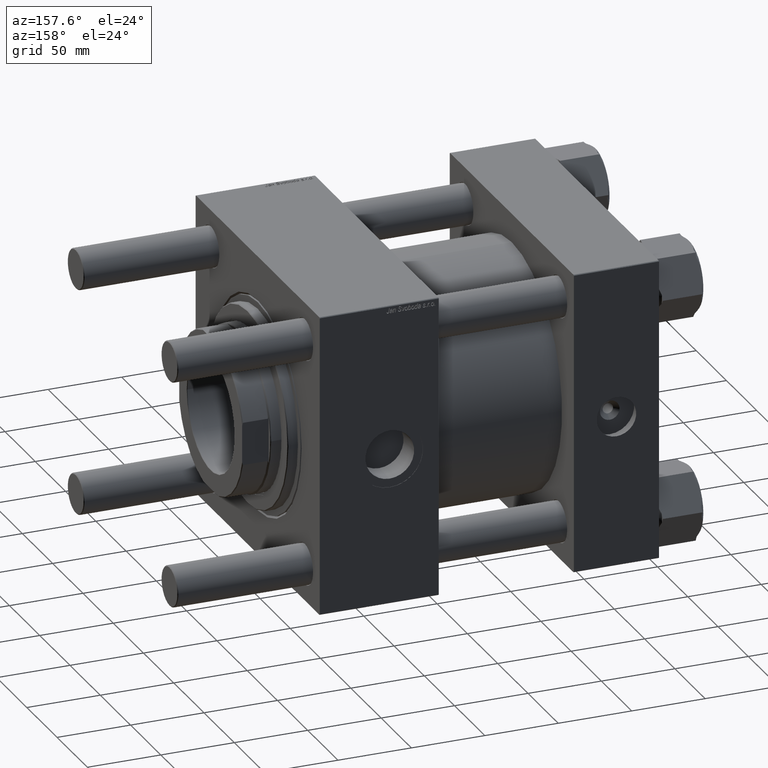
[diagram: clean part render]
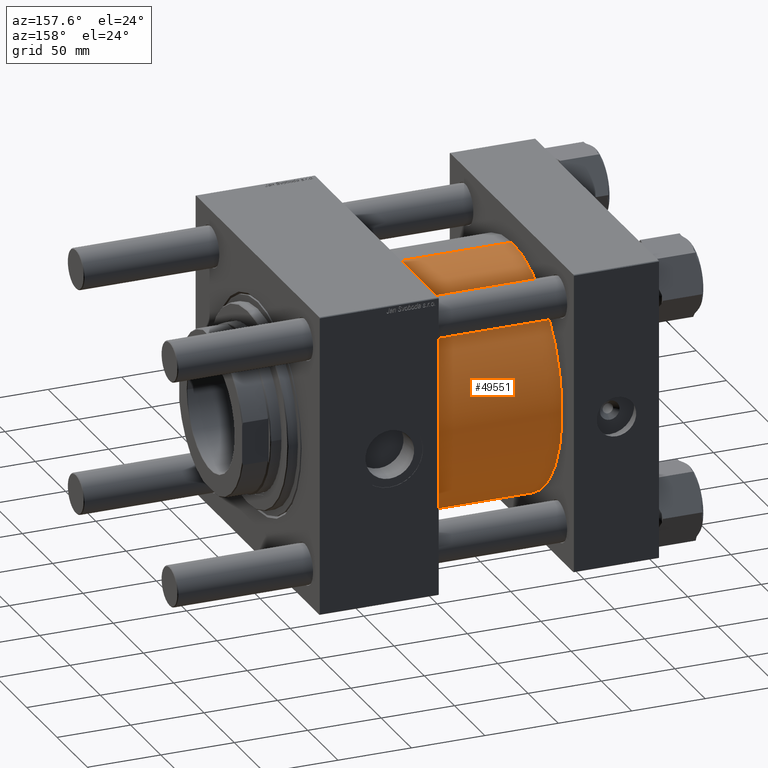
[diagram: same view with one face highlighted and labeled with its STEP entity id]
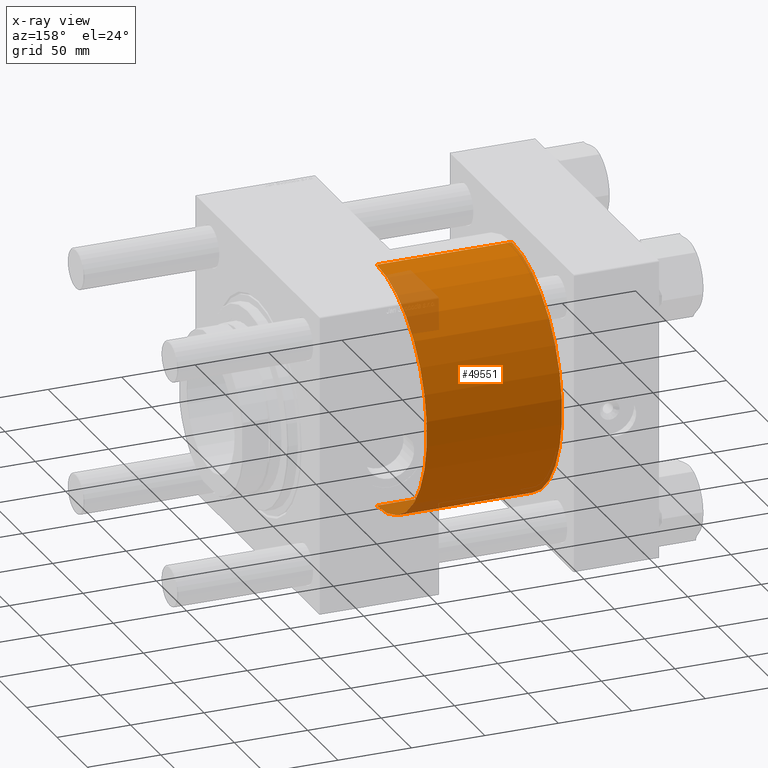
[diagram: x-ray of the same camera — body ghosted, the highlighted face saturated]
A machine part, auxiliary view. The second image highlights one B-rep face of the part: STEP entity #49551.
The next image is the same camera in x-ray: the body ghosted, the highlighted face saturated — about 8% of this face is hidden behind the body in this view.
In plain terms, the highlighted cylindrical surface (partial cylindrical patch) has radius 83 mm, axis along (-1, -0, -0).
Its self-contained STEP definition (entity closure, byte-faithful):
#1341 = CYLINDRICAL_SURFACE ( 'NONE', #45458, 83.00000000000000000 ) ;
#1710 = DIRECTION ( 'NONE',  ( 1.000000000000000000, -0.000000000000000000, -0.000000000000000000 ) ) ;
#2698 = CARTESIAN_POINT ( 'NONE',  ( 150.0000000000000000, -2.602085213965210642E-15, 83.00000000000000000 ) ) ;
#3194 = EDGE_CURVE ( 'NONE', #39453, #37059, #42390, .T. ) ;
#4969 = AXIS2_PLACEMENT_3D ( 'NONE', #45733, #1710, #54674 ) ;
#8276 = VERTEX_POINT ( 'NONE', #28687 ) ;
#10536 = LINE ( 'NONE', #33708, #31525 ) ;
#11665 = AXIS2_PLACEMENT_3D ( 'NONE', #39420, #13614, #31299 ) ;
#13313 = EDGE_CURVE ( 'NONE', #8276, #37059, #36462, .T. ) ;
#13498 = DIRECTION ( 'NONE',  ( -1.000000000000000000, -0.000000000000000000, -0.000000000000000000 ) ) ;
#13614 = DIRECTION ( 'NONE',  ( 1.000000000000000000, 0.000000000000000000, 0.000000000000000000 ) ) ;
#13788 = FACE_OUTER_BOUND ( 'NONE', #50593, .T. ) ;
#16830 = VECTOR ( 'NONE', #42665, 1000.000000000000000 ) ;
#19808 = DIRECTION ( 'NONE',  ( -1.000000000000000000, -0.000000000000000000, -0.000000000000000000 ) ) ;
#21851 = CIRCLE ( 'NONE', #11665, 83.00000000000000000 ) ;
#23632 = DIRECTION ( 'NONE',  ( 0.000000000000000000, 0.000000000000000000, 1.000000000000000000 ) ) ;
#25307 = EDGE_CURVE ( 'NONE', #53820, #39453, #21851, .T. ) ;
#25655 = CARTESIAN_POINT ( 'NONE',  ( 150.0000000000000000, -2.602085213965210642E-15, 83.00000000000000000 ) ) ;
#28687 = CARTESIAN_POINT ( 'NONE',  ( 57.99999999999999289, 7.562483218957820855E-15, -83.00000000000000000 ) ) ;
#30232 = ORIENTED_EDGE ( 'NONE', *, *, #25307, .F. ) ;
#31299 = DIRECTION ( 'NONE',  ( 0.000000000000000000, 0.000000000000000000, -1.000000000000000000 ) ) ;
#31525 = VECTOR ( 'NONE', #19808, 1000.000000000000000 ) ;
#33708 = CARTESIAN_POINT ( 'NONE',  ( 150.0000000000000000, 7.562483218957820855E-15, -83.00000000000000000 ) ) ;
#34469 = CARTESIAN_POINT ( 'NONE',  ( 150.0000000000000000, 7.562483218957820855E-15, -83.00000000000000000 ) ) ;
#36462 = CIRCLE ( 'NONE', #4969, 83.00000000000000000 ) ;
#37059 = VERTEX_POINT ( 'NONE', #51243 ) ;
#39420 = CARTESIAN_POINT ( 'NONE',  ( 150.0000000000000000, -2.602085213965210642E-15, 0.000000000000000000 ) ) ;
#39453 = VERTEX_POINT ( 'NONE', #25655 ) ;
#40449 = CARTESIAN_POINT ( 'NONE',  ( 150.0000000000000000, -2.602085213965210642E-15, 0.000000000000000000 ) ) ;
#41420 = ORIENTED_EDGE ( 'NONE', *, *, #3194, .F. ) ;
#42039 = EDGE_CURVE ( 'NONE', #53820, #8276, #10536, .T. ) ;
#42390 = LINE ( 'NONE', #2698, #16830 ) ;
#42665 = DIRECTION ( 'NONE',  ( -1.000000000000000000, -0.000000000000000000, -0.000000000000000000 ) ) ;
#45273 = ORIENTED_EDGE ( 'NONE', *, *, #42039, .T. ) ;
#45458 = AXIS2_PLACEMENT_3D ( 'NONE', #40449, #13498, #23632 ) ;
#45733 = CARTESIAN_POINT ( 'NONE',  ( 57.99999999999999289, -2.602085213965210642E-15, 0.000000000000000000 ) ) ;
#46505 = ORIENTED_EDGE ( 'NONE', *, *, #13313, .T. ) ;
#49551 = ADVANCED_FACE ( 'NONE', ( #13788 ), #1341, .T. ) ;
#50593 = EDGE_LOOP ( 'NONE', ( #30232, #45273, #46505, #41420 ) ) ;
#51243 = CARTESIAN_POINT ( 'NONE',  ( 57.99999999999999289, -2.602085213965210642E-15, 83.00000000000000000 ) ) ;
#53820 = VERTEX_POINT ( 'NONE', #34469 ) ;
#54674 = DIRECTION ( 'NONE',  ( 0.000000000000000000, 0.000000000000000000, 1.000000000000000000 ) ) ;